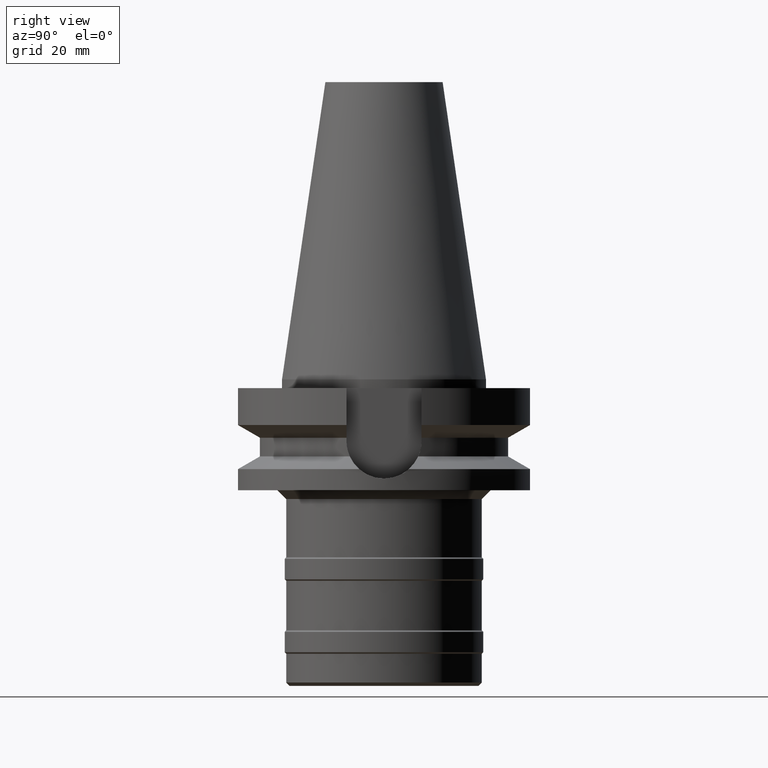
[diagram: clean part render]
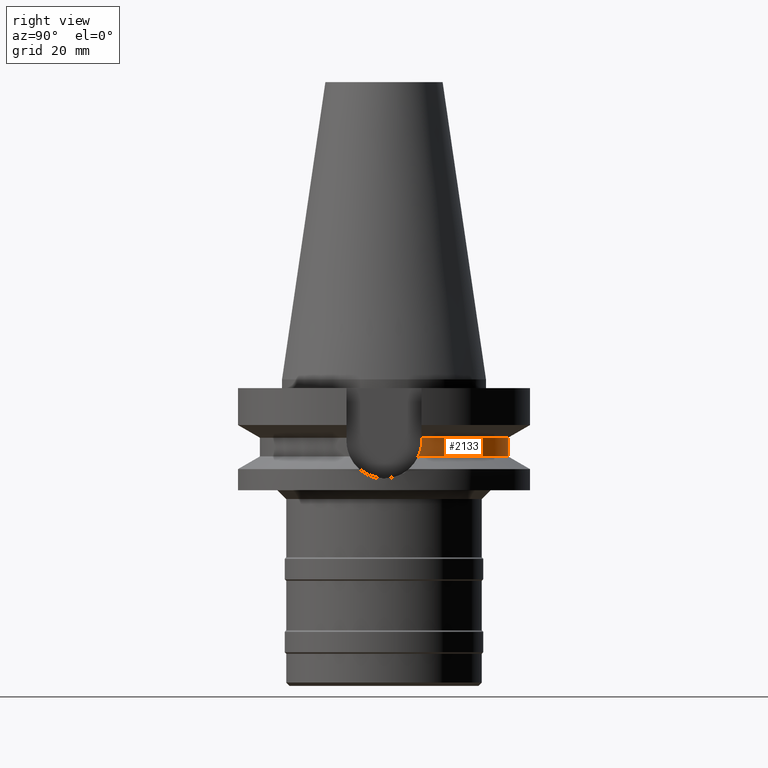
[diagram: same view with one face highlighted and labeled with its STEP entity id]
A machine part, right view. The second image highlights one B-rep face of the part: STEP entity #2133.
In plain terms, the highlighted cylindrical surface (partial cylindrical patch) has radius 42.5 mm, axis along (0, 0, -1).
Its self-contained STEP definition (entity closure, byte-faithful):
#755=CARTESIAN_POINT('',(-4.085052569294E1,1.172538061688E1,-2.640718074535E1));
#792=CARTESIAN_POINT('',(0.E0,0.E0,-2.640718074535E1));
#793=DIRECTION('',(0.E0,0.E0,1.E0));
#794=DIRECTION('',(9.611888398338E-1,2.758913086325E-1,0.E0));
#795=AXIS2_PLACEMENT_3D('',#792,#793,#794);
#800=CARTESIAN_POINT('',(0.E0,0.E0,-2.640718074535E1));
#801=DIRECTION('',(0.E0,0.E0,1.E0));
#802=DIRECTION('',(0.E0,1.E0,0.E0));
#803=AXIS2_PLACEMENT_3D('',#800,#801,#802);
#808=CARTESIAN_POINT('',(-4.051083188482E1,1.285E1,-2.115E1));
#809=CARTESIAN_POINT('',(-4.051083188482E1,1.285E1,-2.175069940276E1));
#810=CARTESIAN_POINT('',(-4.053737939728E1,1.276677010615E1,-2.294131373626E1));
#811=CARTESIAN_POINT('',(-4.065473259263E1,1.239069934062E1,-2.471147259509E1));
#812=CARTESIAN_POINT('',(-4.077854870214E1,1.197614415352E1,-2.584788897769E1));
#813=CARTESIAN_POINT('',(-4.085052569294E1,1.172538061688E1,-2.640718074535E1));
#818=CARTESIAN_POINT('',(4.085052569294E1,1.172538061688E1,-2.640718074535E1));
#819=CARTESIAN_POINT('',(4.077854327115E1,1.197616307477E1,-2.584784677659E1));
#820=CARTESIAN_POINT('',(4.065472271207E1,1.239073162697E1,-2.471136879754E1));
#821=CARTESIAN_POINT('',(4.053737510034E1,1.276678357057E1,-2.294120226877E1));
#822=CARTESIAN_POINT('',(4.051083188482E1,1.285E1,-2.175065147887E1));
#823=CARTESIAN_POINT('',(4.051083188482E1,1.285E1,-2.115E1));
#828=DIRECTION('',(9.475564683954E-7,-2.987263294859E-6,9.999999999951E-1));
#829=VECTOR('',#828,1.157154217395E0);
#830=CARTESIAN_POINT('',(4.051083188482E1,1.285E1,-2.115E1));
#831=LINE('',#830,#829);
#835=DIRECTION('',(9.499935822418E-7,2.994946524889E-6,-9.999999999951E-1));
#836=VECTOR('',#835,1.157154149165E0);
#837=CARTESIAN_POINT('',(-4.051083298411E1,1.284999653439E1,-1.999284585084E1));
#838=LINE('',#837,#836);
#1112=CARTESIAN_POINT('',(0.E0,0.E0,-1.999281925465E1));
#1113=DIRECTION('',(0.E0,0.E0,-1.E0));
#1114=DIRECTION('',(-9.531960443487E-1,3.023529411765E-1,0.E0));
#1115=AXIS2_PLACEMENT_3D('',#1112,#1113,#1114);
#1120=CARTESIAN_POINT('',(0.E0,0.E0,-1.999281925465E1));
#1121=DIRECTION('',(0.E0,0.E0,-1.E0));
#1122=DIRECTION('',(0.E0,1.E0,0.E0));
#1123=AXIS2_PLACEMENT_3D('',#1120,#1121,#1122);
#1345=CARTESIAN_POINT('',(4.051083188482E1,1.285E1,-2.115E1));
#1346=VERTEX_POINT('',#1345);
#1347=VERTEX_POINT('',#818);
#1352=VERTEX_POINT('',#755);
#1354=CARTESIAN_POINT('',(0.E0,4.25E1,-2.640718074535E1));
#1355=VERTEX_POINT('',#1354);
#1356=VERTEX_POINT('',#808);
#1371=CARTESIAN_POINT('',(4.051083298129E1,1.284999654328E1,-1.999284578261E1));
#1372=VERTEX_POINT('',#1371);
#1373=CARTESIAN_POINT('',(-4.051083188482E1,1.285E1,-1.999281925465E1));
#1374=CARTESIAN_POINT('',(0.E0,4.25E1,-1.999281925465E1));
#1375=VERTEX_POINT('',#1373);
#1376=VERTEX_POINT('',#1374);
#2114=CARTESIAN_POINT('',(0.E0,1.373318920564E-14,1.1214E2));
#2115=DIRECTION('',(0.E0,0.E0,-1.E0));
#2116=DIRECTION('',(0.E0,-1.E0,0.E0));
#2117=AXIS2_PLACEMENT_3D('',#2114,#2115,#2116);
#2118=CYLINDRICAL_SURFACE('',#2117,4.25E1);
#2119=ORIENTED_EDGE('',*,*,#2068,.T.);
#2120=ORIENTED_EDGE('',*,*,#2109,.F.);
#2121=ORIENTED_EDGE('',*,*,#2107,.F.);
#2122=ORIENTED_EDGE('',*,*,#2033,.T.);
#2124=ORIENTED_EDGE('',*,*,#2123,.T.);
#2126=ORIENTED_EDGE('',*,*,#2125,.F.);
#2128=ORIENTED_EDGE('',*,*,#2127,.F.);
#2130=ORIENTED_EDGE('',*,*,#2129,.T.);
#2131=EDGE_LOOP('',(#2119,#2120,#2121,#2122,#2124,#2126,#2128,#2130));
#2132=FACE_OUTER_BOUND('',#2131,.F.);
#796=CIRCLE('',#795,4.25E1);
#804=CIRCLE('',#803,4.25E1);
#814=B_SPLINE_CURVE_WITH_KNOTS('',3,(#808,#809,#810,#811,#812,#813),
.UNSPECIFIED.,.F.,.F.,(4,1,1,4),(0.E0,3.333333333333E-1,6.666666666667E-1,1.E0),
.UNSPECIFIED.);
#824=B_SPLINE_CURVE_WITH_KNOTS('',3,(#818,#819,#820,#821,#822,#823),
.UNSPECIFIED.,.F.,.F.,(4,1,1,4),(0.E0,3.333333333333E-1,6.666666666667E-1,1.E0),
.UNSPECIFIED.);
#1116=CIRCLE('',#1115,4.25E1);
#1124=CIRCLE('',#1123,4.25E1);
#2033=EDGE_CURVE('',#1347,#1346,#824,.T.);
#2068=EDGE_CURVE('',#1356,#1352,#814,.T.);
#2107=EDGE_CURVE('',#1347,#1355,#796,.T.);
#2109=EDGE_CURVE('',#1355,#1352,#804,.T.);
#2123=EDGE_CURVE('',#1346,#1372,#831,.T.);
#2125=EDGE_CURVE('',#1376,#1372,#1124,.T.);
#2127=EDGE_CURVE('',#1375,#1376,#1116,.T.);
#2129=EDGE_CURVE('',#1375,#1356,#838,.T.);
#2133=ADVANCED_FACE('',(#2132),#2118,.T.);